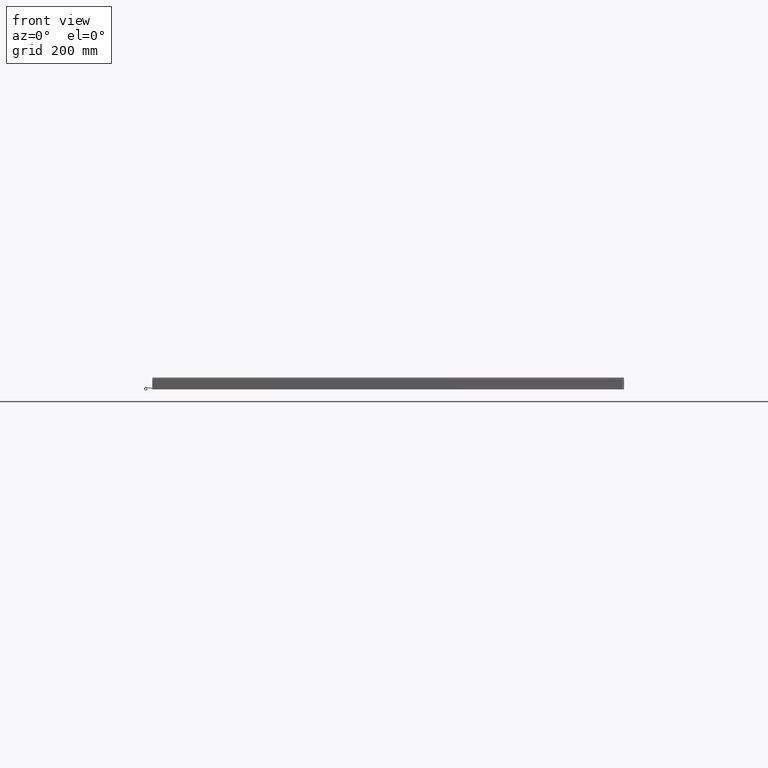
[diagram: clean part render]
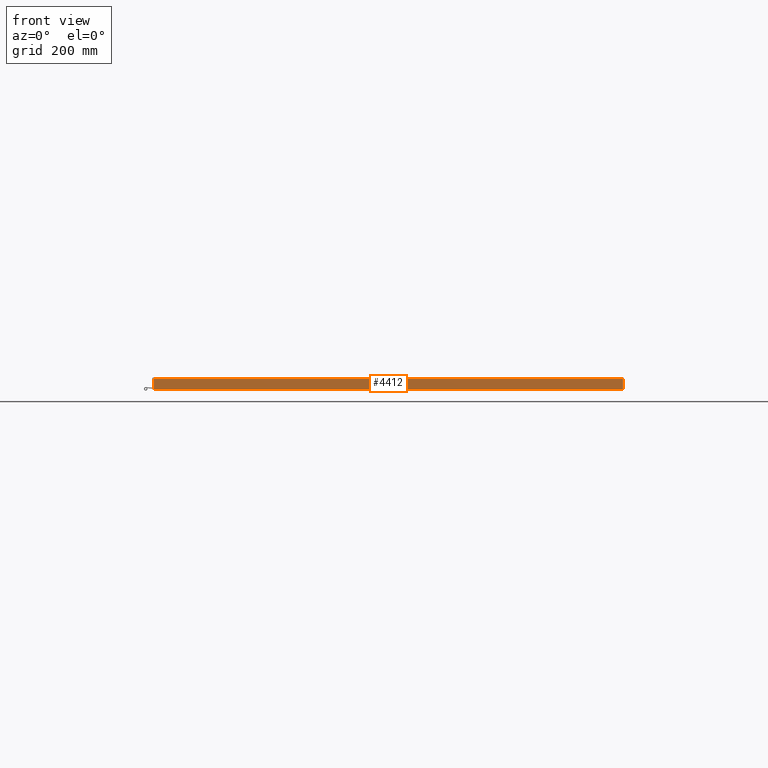
[diagram: same view with one face highlighted and labeled with its STEP entity id]
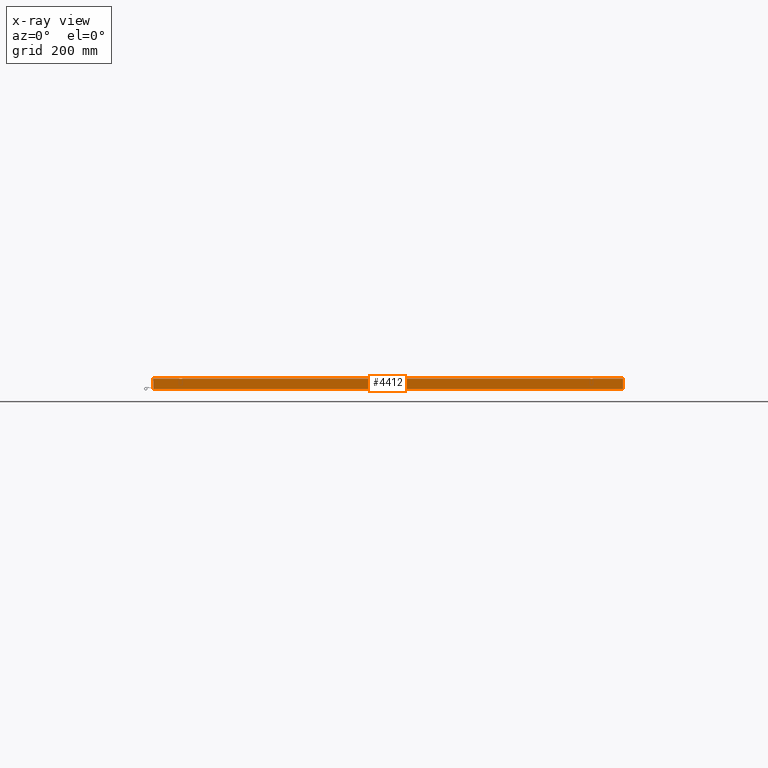
[diagram: x-ray of the same camera — body ghosted, the highlighted face saturated]
A machine part, front view. The second image highlights one B-rep face of the part: STEP entity #4412.
The next image is the same camera in x-ray: the body ghosted, the highlighted face saturated — about 0% of this face is hidden behind the body in this view.
In plain terms, the highlighted planar face has unit normal (0, 1, -0).
Its self-contained STEP definition (entity closure, byte-faithful):
#423=PLANE('',#4726);
#592=FACE_OUTER_BOUND('',#821,.T.);
#821=EDGE_LOOP('',(#3354,#3355,#3356,#3357));
#1049=LINE('',#6607,#1505);
#1064=LINE('',#6778,#1520);
#1085=LINE('',#6917,#1541);
#1087=LINE('',#6920,#1543);
#1505=VECTOR('',#5198,0.393700787401575);
#1520=VECTOR('',#5225,0.393700787401575);
#1541=VECTOR('',#5270,0.393700787401575);
#1543=VECTOR('',#5274,0.393700787401575);
#2120=VERTEX_POINT('',#6601);
#2121=VERTEX_POINT('',#6606);
#2132=VERTEX_POINT('',#6776);
#2140=VERTEX_POINT('',#6916);
#2560=EDGE_CURVE('',#2121,#2120,#1049,.T.);
#2583=EDGE_CURVE('',#2132,#2120,#1064,.T.);
#2607=EDGE_CURVE('',#2121,#2140,#1085,.T.);
#2609=EDGE_CURVE('',#2140,#2132,#1087,.T.);
#3354=ORIENTED_EDGE('',*,*,#2583,.F.);
#3355=ORIENTED_EDGE('',*,*,#2609,.F.);
#3356=ORIENTED_EDGE('',*,*,#2607,.F.);
#3357=ORIENTED_EDGE('',*,*,#2560,.T.);
#4412=ADVANCED_FACE('',(#592),#423,.F.);
#4726=AXIS2_PLACEMENT_3D('',#6921,#5275,#5276);
#5198=DIRECTION('',(-1.,1.43259147628091E-18,-7.72210192916992E-33));
#5225=DIRECTION('',(3.63418297565729E-15,-4.03000501424955E-15,-1.));
#5270=DIRECTION('',(0.,5.39030285815812E-15,1.));
#5274=DIRECTION('',(-1.,0.,0.));
#5275=DIRECTION('center_axis',(-1.43259147628091E-18,-1.,4.03000501424955E-15));
#5276=DIRECTION('ref_axis',(1.,-1.43259147628091E-18,7.72210192916992E-33));
#6601=CARTESIAN_POINT('',(-17.102451456544,20.09375,0.105250000000004));
#6606=CARTESIAN_POINT('',(17.102451456544,20.09375,0.105250000000001));
#6607=CARTESIAN_POINT('',(-0.049677723285521,20.09375,0.105250000000001));
#6776=CARTESIAN_POINT('',(-17.102451456544,20.09375,0.875000000000001));
#6778=CARTESIAN_POINT('',(-17.102451456544,20.09375,0.473546108391309));
#6916=CARTESIAN_POINT('',(17.102451456544,20.09375,0.875000000000001));
#6917=CARTESIAN_POINT('',(17.102451456544,20.09375,0.105250000000001));
#6920=CARTESIAN_POINT('',(17.102451456544,20.09375,0.875000000000001));
#6921=CARTESIAN_POINT('Origin',(-0.0467304465710415,20.09375,0.456967216782679));